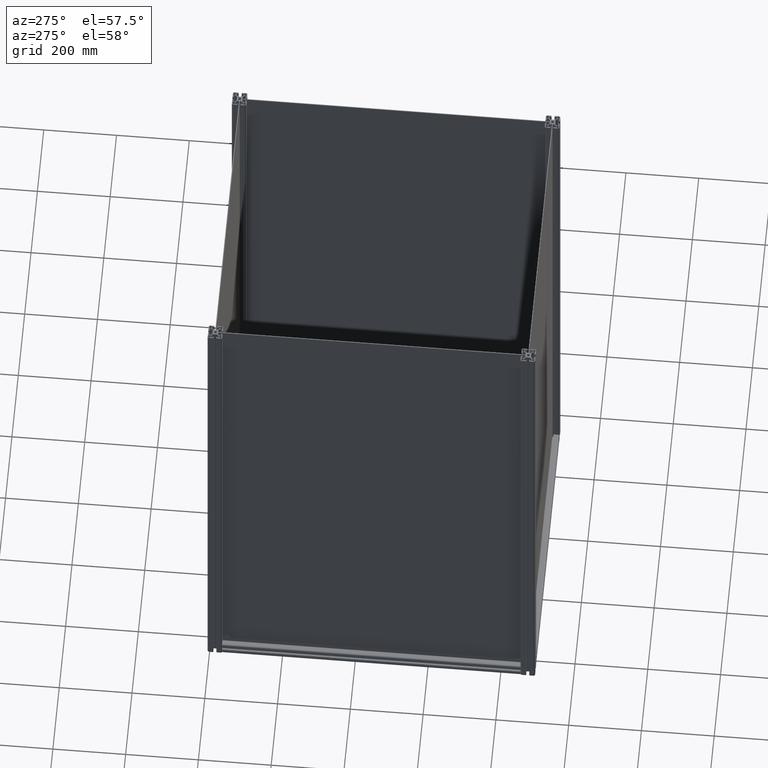
[diagram: clean part render]
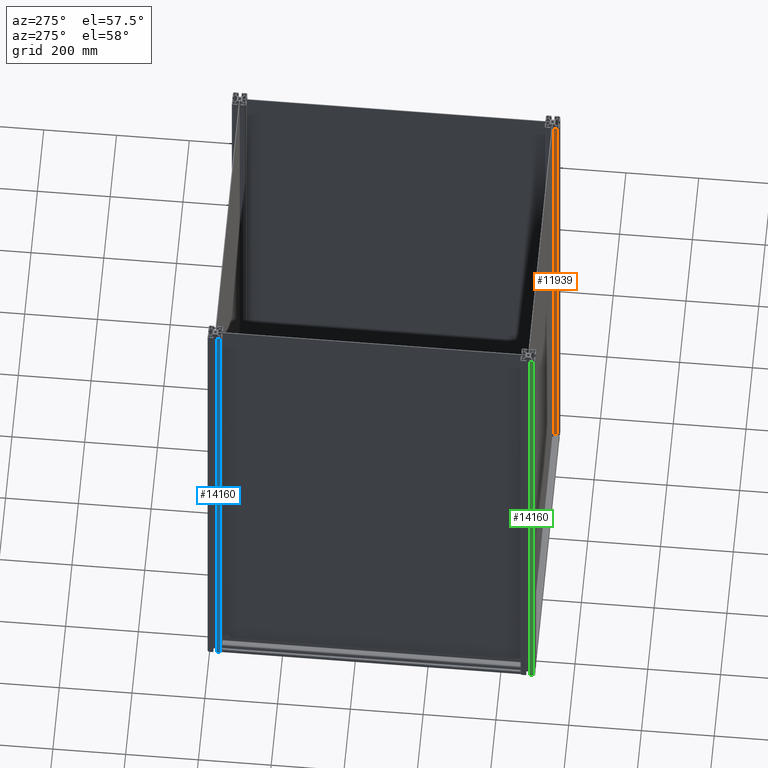
[diagram: same view with three faces highlighted in distinct colors, each labeled with its STEP entity id]
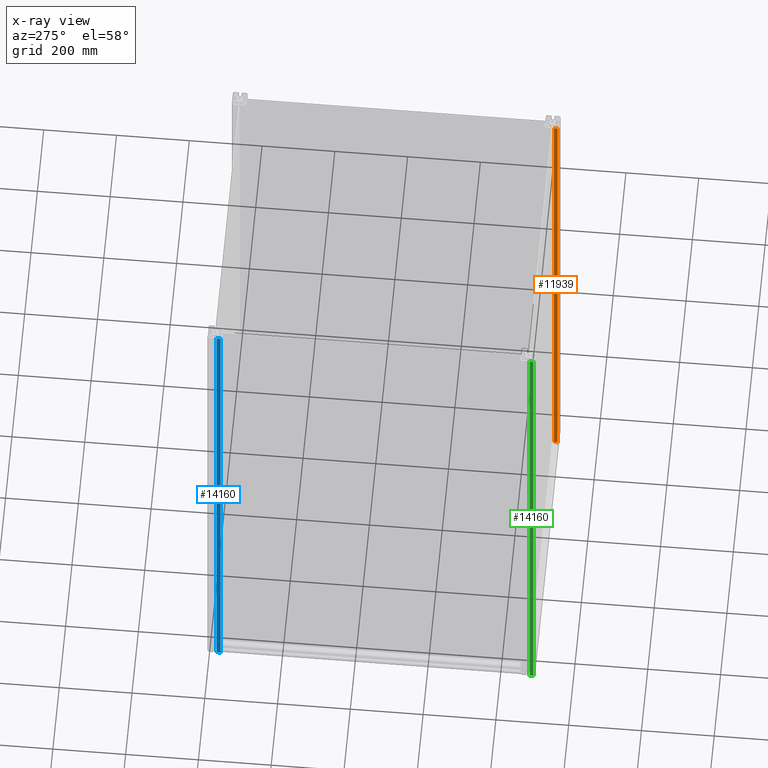
[diagram: x-ray of the same camera — body ghosted, the three highlighted faces saturated]
A machine part, auxiliary view with three faces highlighted in distinct colors.
The next image is the same camera in x-ray (body ghosted, the three faces saturated) — at least one of them is partly hidden behind the body in this view.
Their STEP definitions:

[orange] entity #11939 — the highlighted planar face has unit normal (1, 0, 0).
#762 = EDGE_CURVE ( 'NONE', #2411, #1341, #10124, .T. ) ;
#965 = EDGE_CURVE ( 'NONE', #1341, #7046, #16348, .T. ) ;
#1341 = VERTEX_POINT ( 'NONE', #6145 ) ;
#2012 = CARTESIAN_POINT ( 'NONE',  ( 20.00000000000000000, 5.100000000000370903, 600.0000000000000000 ) ) ;
#2411 = VERTEX_POINT ( 'NONE', #2012 ) ;
#3570 = EDGE_LOOP ( 'NONE', ( #8728, #10195, #6596, #11745 ) ) ;
#3625 = VECTOR ( 'NONE', #5548, 1000.000000000000000 ) ;
#4671 = AXIS2_PLACEMENT_3D ( 'NONE', #14603, #12291, #8017 ) ;
#5430 = CARTESIAN_POINT ( 'NONE',  ( 20.00000000000000000, 15.50000000000180123, -1000.000000000000000 ) ) ;
#5496 = VECTOR ( 'NONE', #7622, 1000.000000000000000 ) ;
#5548 = DIRECTION ( 'NONE',  ( 0.000000000000000000, -1.000000000000000000, 0.000000000000000000 ) ) ;
#6093 = CARTESIAN_POINT ( 'NONE',  ( 20.00000000000000000, 5.100000000000370903, -1000.000000000000000 ) ) ;
#6145 = CARTESIAN_POINT ( 'NONE',  ( 20.00000000000000000, 15.50000000000180123, 600.0000000000000000 ) ) ;
#6596 = ORIENTED_EDGE ( 'NONE', *, *, #7957, .F. ) ;
#6819 = DIRECTION ( 'NONE',  ( 0.000000000000000000, 0.000000000000000000, 1.000000000000000000 ) ) ;
#7033 = PLANE ( 'NONE',  #4671 ) ;
#7046 = VERTEX_POINT ( 'NONE', #16446 ) ;
#7622 = DIRECTION ( 'NONE',  ( 0.000000000000000000, 0.000000000000000000, -1.000000000000000000 ) ) ;
#7957 = EDGE_CURVE ( 'NONE', #7046, #11772, #15090, .T. ) ;
#8017 = DIRECTION ( 'NONE',  ( 0.000000000000000000, 0.000000000000000000, 1.000000000000000000 ) ) ;
#8728 = ORIENTED_EDGE ( 'NONE', *, *, #762, .F. ) ;
#8936 = LINE ( 'NONE', #10583, #9250 ) ;
#9250 = VECTOR ( 'NONE', #6819, 1000.000000000000000 ) ;
#10124 = LINE ( 'NONE', #10940, #10294 ) ;
#10195 = ORIENTED_EDGE ( 'NONE', *, *, #15644, .F. ) ;
#10294 = VECTOR ( 'NONE', #14856, 1000.000000000000000 ) ;
#10583 = CARTESIAN_POINT ( 'NONE',  ( 20.00000000000000000, 5.100000000000370903, 800.0000000000000000 ) ) ;
#10940 = CARTESIAN_POINT ( 'NONE',  ( 20.00000000000000000, 5.100000000000370903, 600.0000000000000000 ) ) ;
#11149 = CARTESIAN_POINT ( 'NONE',  ( 20.00000000000000000, 15.50000000000180123, 800.0000000000000000 ) ) ;
#11482 = FACE_OUTER_BOUND ( 'NONE', #3570, .T. ) ;
#11745 = ORIENTED_EDGE ( 'NONE', *, *, #965, .F. ) ;
#11772 = VERTEX_POINT ( 'NONE', #6093 ) ;
#11939 = ADVANCED_FACE ( 'NONE', ( #11482 ), #7033, .F. ) ;
#12291 = DIRECTION ( 'NONE',  ( -1.000000000000000000, 0.000000000000000000, 0.000000000000000000 ) ) ;
#14603 = CARTESIAN_POINT ( 'NONE',  ( 20.00000000000000000, 5.100000000000360245, 800.0000000000000000 ) ) ;
#14856 = DIRECTION ( 'NONE',  ( 0.000000000000000000, 1.000000000000000000, 0.000000000000000000 ) ) ;
#15090 = LINE ( 'NONE', #5430, #3625 ) ;
#15644 = EDGE_CURVE ( 'NONE', #11772, #2411, #8936, .T. ) ;
#16348 = LINE ( 'NONE', #11149, #5496 ) ;
#16446 = CARTESIAN_POINT ( 'NONE',  ( 20.00000000000000000, 15.50000000000180123, -1000.000000000000000 ) ) ;

[blue] entity #14160 — the highlighted planar face has unit normal (1, 0, 0).
#693 = LINE ( 'NONE', #12183, #5917 ) ;
#780 = CARTESIAN_POINT ( 'NONE',  ( -20.00000000000180123, -5.100000000000370903, 600.0000000000000000 ) ) ;
#1035 = AXIS2_PLACEMENT_3D ( 'NONE', #4145, #11712, #5404 ) ;
#1318 = PLANE ( 'NONE',  #1035 ) ;
#1705 = ORIENTED_EDGE ( 'NONE', *, *, #12025, .F. ) ;
#2679 = VECTOR ( 'NONE', #11515, 1000.000000000000000 ) ;
#2738 = LINE ( 'NONE', #14265, #2679 ) ;
#4145 = CARTESIAN_POINT ( 'NONE',  ( -20.00000000000180123, -5.100000000000360245, 800.0000000000000000 ) ) ;
#4227 = VERTEX_POINT ( 'NONE', #780 ) ;
#4426 = EDGE_CURVE ( 'NONE', #11059, #16544, #5676, .T. ) ;
#4498 = VECTOR ( 'NONE', #5161, 1000.000000000000000 ) ;
#5161 = DIRECTION ( 'NONE',  ( -1.080866165800837046E-13, 1.000000000000000000, 0.000000000000000000 ) ) ;
#5404 = DIRECTION ( 'NONE',  ( 0.000000000000000000, 1.000000000000000000, 0.000000000000000000 ) ) ;
#5676 = LINE ( 'NONE', #9324, #11217 ) ;
#5726 = ORIENTED_EDGE ( 'NONE', *, *, #4426, .F. ) ;
#5917 = VECTOR ( 'NONE', #13503, 1000.000000000000000 ) ;
#6107 = CARTESIAN_POINT ( 'NONE',  ( -20.00000000000180123, -5.100000000000370903, -1000.000000000000000 ) ) ;
#6431 = EDGE_LOOP ( 'NONE', ( #1705, #16459, #13874, #5726 ) ) ;
#7090 = EDGE_CURVE ( 'NONE', #10126, #4227, #2738, .T. ) ;
#8787 = CARTESIAN_POINT ( 'NONE',  ( -20.00000000000033751, -15.50000000000129852, -1000.000000000000000 ) ) ;
#9108 = DIRECTION ( 'NONE',  ( 0.000000000000000000, 0.000000000000000000, -1.000000000000000000 ) ) ;
#9324 = CARTESIAN_POINT ( 'NONE',  ( -20.00000000000089884, -15.50000000000129852, 800.0000000000000000 ) ) ;
#10126 = VERTEX_POINT ( 'NONE', #6107 ) ;
#11059 = VERTEX_POINT ( 'NONE', #13292 ) ;
#11217 = VECTOR ( 'NONE', #9108, 1000.000000000000000 ) ;
#11515 = DIRECTION ( 'NONE',  ( 0.000000000000000000, 0.000000000000000000, 1.000000000000000000 ) ) ;
#11575 = CARTESIAN_POINT ( 'NONE',  ( -20.00000000000067857, -15.50000000000129852, -1000.000000000000000 ) ) ;
#11712 = DIRECTION ( 'NONE',  ( 1.000000000000000000, 0.000000000000000000, 0.000000000000000000 ) ) ;
#11926 = FACE_OUTER_BOUND ( 'NONE', #6431, .T. ) ;
#12025 = EDGE_CURVE ( 'NONE', #4227, #11059, #693, .T. ) ;
#12183 = CARTESIAN_POINT ( 'NONE',  ( -20.00000000000180123, -5.100000000000370903, 600.0000000000000000 ) ) ;
#13292 = CARTESIAN_POINT ( 'NONE',  ( -20.00000000000135003, -15.50000000000129852, 600.0000000000000000 ) ) ;
#13503 = DIRECTION ( 'NONE',  ( 4.370168756787335406E-14, -1.000000000000000000, 0.000000000000000000 ) ) ;
#13874 = ORIENTED_EDGE ( 'NONE', *, *, #16169, .F. ) ;
#14160 = ADVANCED_FACE ( 'NONE', ( #11926 ), #1318, .F. ) ;
#14265 = CARTESIAN_POINT ( 'NONE',  ( -20.00000000000180123, -5.100000000000370903, 800.0000000000000000 ) ) ;
#15717 = LINE ( 'NONE', #11575, #4498 ) ;
#16169 = EDGE_CURVE ( 'NONE', #16544, #10126, #15717, .T. ) ;
#16459 = ORIENTED_EDGE ( 'NONE', *, *, #7090, .F. ) ;
#16544 = VERTEX_POINT ( 'NONE', #8787 ) ;

[green] entity #14160 — the highlighted planar face has unit normal (1, 0, 0).
#693 = LINE ( 'NONE', #12183, #5917 ) ;
#780 = CARTESIAN_POINT ( 'NONE',  ( -20.00000000000180123, -5.100000000000370903, 600.0000000000000000 ) ) ;
#1035 = AXIS2_PLACEMENT_3D ( 'NONE', #4145, #11712, #5404 ) ;
#1318 = PLANE ( 'NONE',  #1035 ) ;
#1705 = ORIENTED_EDGE ( 'NONE', *, *, #12025, .F. ) ;
#2679 = VECTOR ( 'NONE', #11515, 1000.000000000000000 ) ;
#2738 = LINE ( 'NONE', #14265, #2679 ) ;
#4145 = CARTESIAN_POINT ( 'NONE',  ( -20.00000000000180123, -5.100000000000360245, 800.0000000000000000 ) ) ;
#4227 = VERTEX_POINT ( 'NONE', #780 ) ;
#4426 = EDGE_CURVE ( 'NONE', #11059, #16544, #5676, .T. ) ;
#4498 = VECTOR ( 'NONE', #5161, 1000.000000000000000 ) ;
#5161 = DIRECTION ( 'NONE',  ( -1.080866165800837046E-13, 1.000000000000000000, 0.000000000000000000 ) ) ;
#5404 = DIRECTION ( 'NONE',  ( 0.000000000000000000, 1.000000000000000000, 0.000000000000000000 ) ) ;
#5676 = LINE ( 'NONE', #9324, #11217 ) ;
#5726 = ORIENTED_EDGE ( 'NONE', *, *, #4426, .F. ) ;
#5917 = VECTOR ( 'NONE', #13503, 1000.000000000000000 ) ;
#6107 = CARTESIAN_POINT ( 'NONE',  ( -20.00000000000180123, -5.100000000000370903, -1000.000000000000000 ) ) ;
#6431 = EDGE_LOOP ( 'NONE', ( #1705, #16459, #13874, #5726 ) ) ;
#7090 = EDGE_CURVE ( 'NONE', #10126, #4227, #2738, .T. ) ;
#8787 = CARTESIAN_POINT ( 'NONE',  ( -20.00000000000033751, -15.50000000000129852, -1000.000000000000000 ) ) ;
#9108 = DIRECTION ( 'NONE',  ( 0.000000000000000000, 0.000000000000000000, -1.000000000000000000 ) ) ;
#9324 = CARTESIAN_POINT ( 'NONE',  ( -20.00000000000089884, -15.50000000000129852, 800.0000000000000000 ) ) ;
#10126 = VERTEX_POINT ( 'NONE', #6107 ) ;
#11059 = VERTEX_POINT ( 'NONE', #13292 ) ;
#11217 = VECTOR ( 'NONE', #9108, 1000.000000000000000 ) ;
#11515 = DIRECTION ( 'NONE',  ( 0.000000000000000000, 0.000000000000000000, 1.000000000000000000 ) ) ;
#11575 = CARTESIAN_POINT ( 'NONE',  ( -20.00000000000067857, -15.50000000000129852, -1000.000000000000000 ) ) ;
#11712 = DIRECTION ( 'NONE',  ( 1.000000000000000000, 0.000000000000000000, 0.000000000000000000 ) ) ;
#11926 = FACE_OUTER_BOUND ( 'NONE', #6431, .T. ) ;
#12025 = EDGE_CURVE ( 'NONE', #4227, #11059, #693, .T. ) ;
#12183 = CARTESIAN_POINT ( 'NONE',  ( -20.00000000000180123, -5.100000000000370903, 600.0000000000000000 ) ) ;
#13292 = CARTESIAN_POINT ( 'NONE',  ( -20.00000000000135003, -15.50000000000129852, 600.0000000000000000 ) ) ;
#13503 = DIRECTION ( 'NONE',  ( 4.370168756787335406E-14, -1.000000000000000000, 0.000000000000000000 ) ) ;
#13874 = ORIENTED_EDGE ( 'NONE', *, *, #16169, .F. ) ;
#14160 = ADVANCED_FACE ( 'NONE', ( #11926 ), #1318, .F. ) ;
#14265 = CARTESIAN_POINT ( 'NONE',  ( -20.00000000000180123, -5.100000000000370903, 800.0000000000000000 ) ) ;
#15717 = LINE ( 'NONE', #11575, #4498 ) ;
#16169 = EDGE_CURVE ( 'NONE', #16544, #10126, #15717, .T. ) ;
#16459 = ORIENTED_EDGE ( 'NONE', *, *, #7090, .F. ) ;
#16544 = VERTEX_POINT ( 'NONE', #8787 ) ;